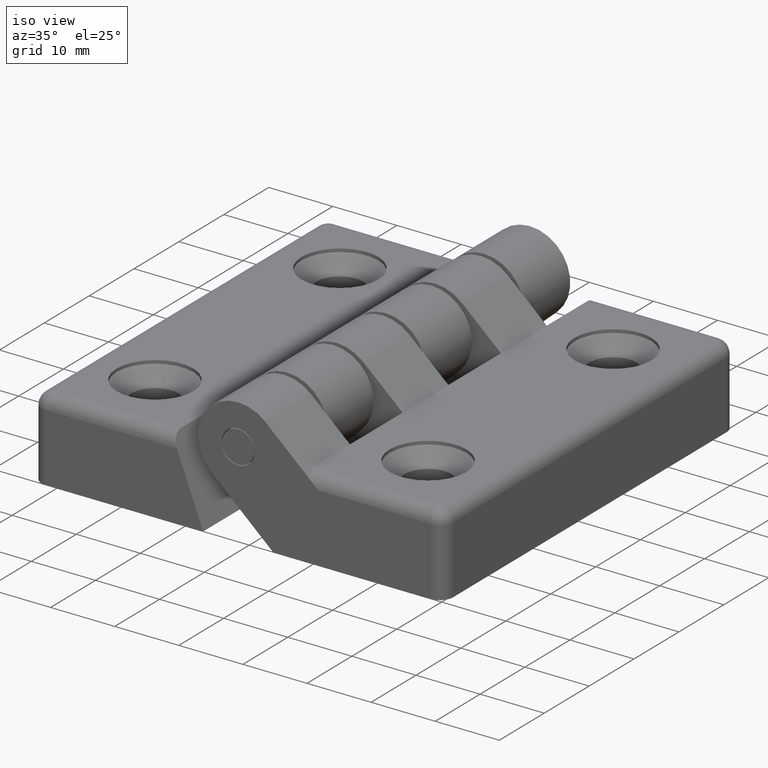
[diagram: clean part render]
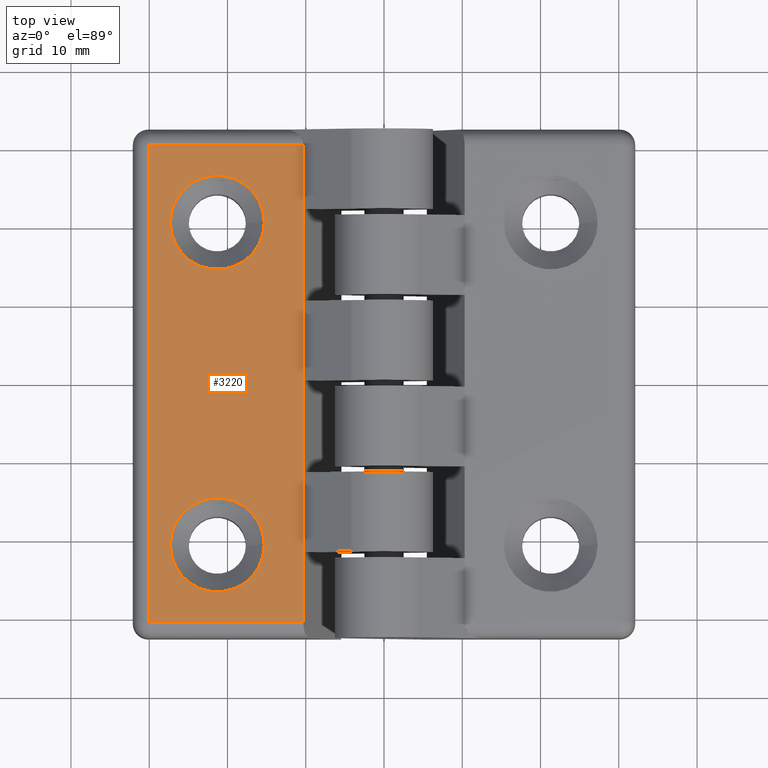
[diagram: tour spotlight — one face highlighted and labeled with its STEP entity id]
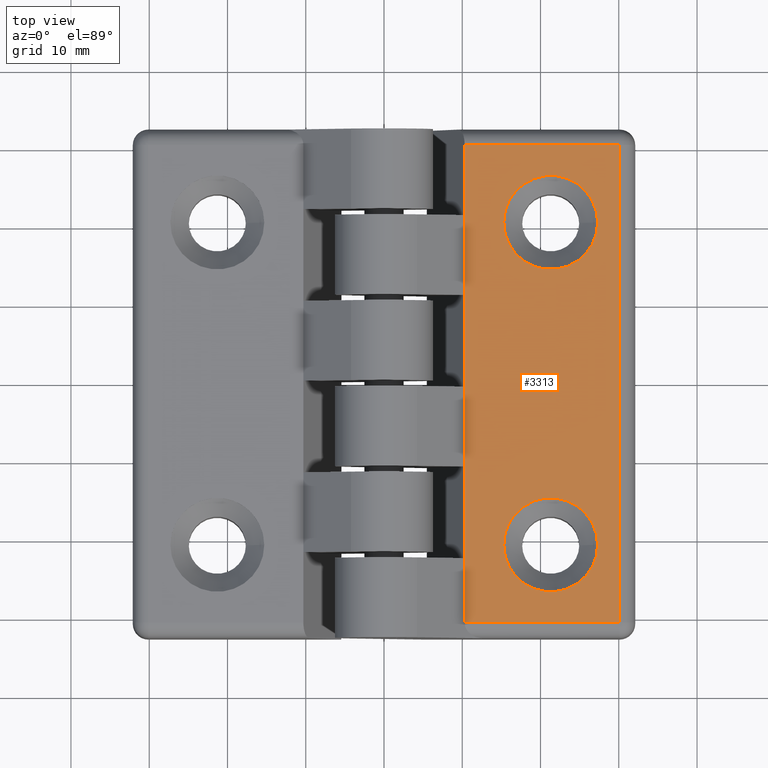
[diagram: tour spotlight — one face highlighted and labeled with its STEP entity id]
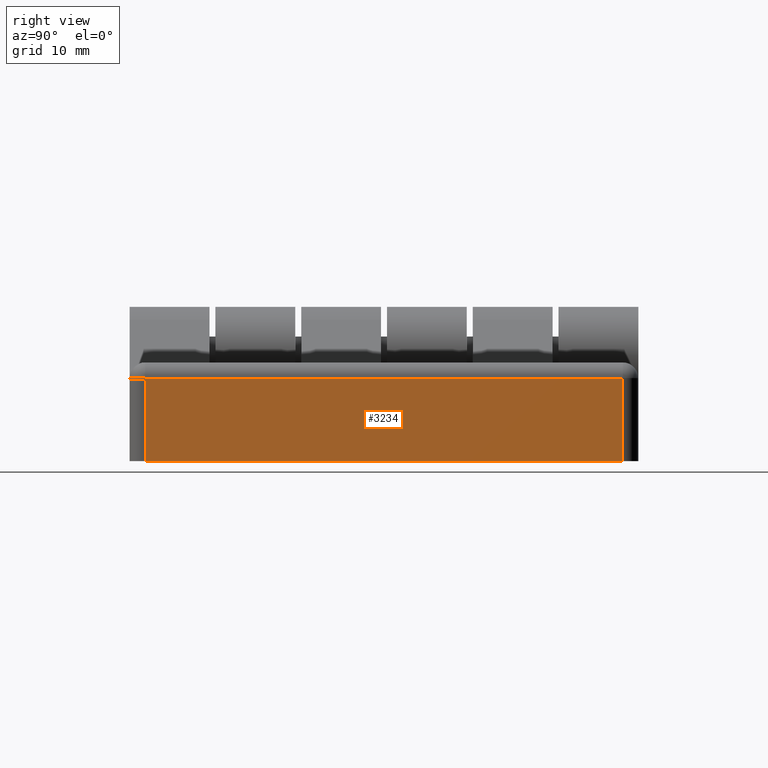
[diagram: tour spotlight — one face highlighted and labeled with its STEP entity id]
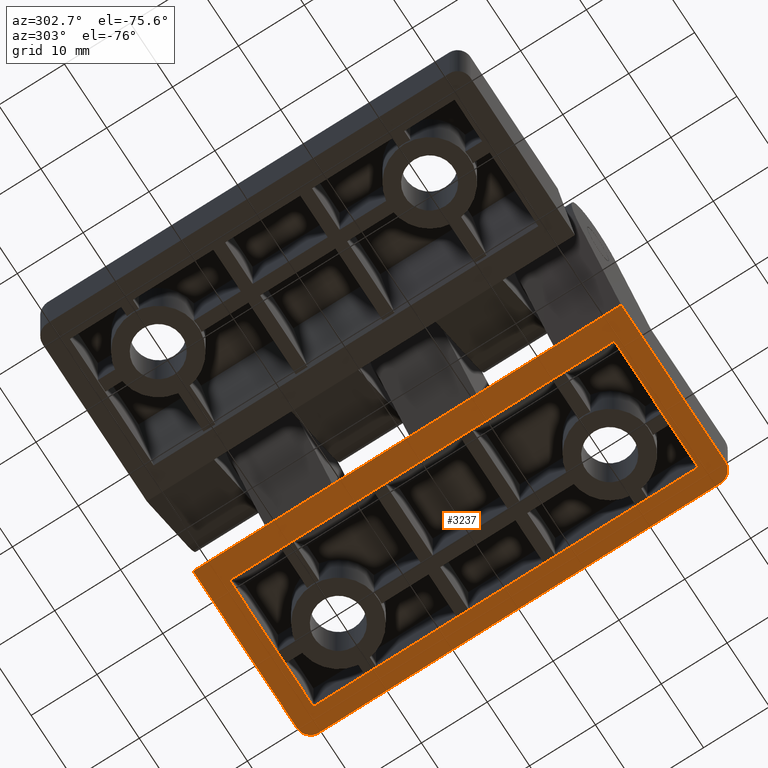
[diagram: tour spotlight — one face highlighted and labeled with its STEP entity id]
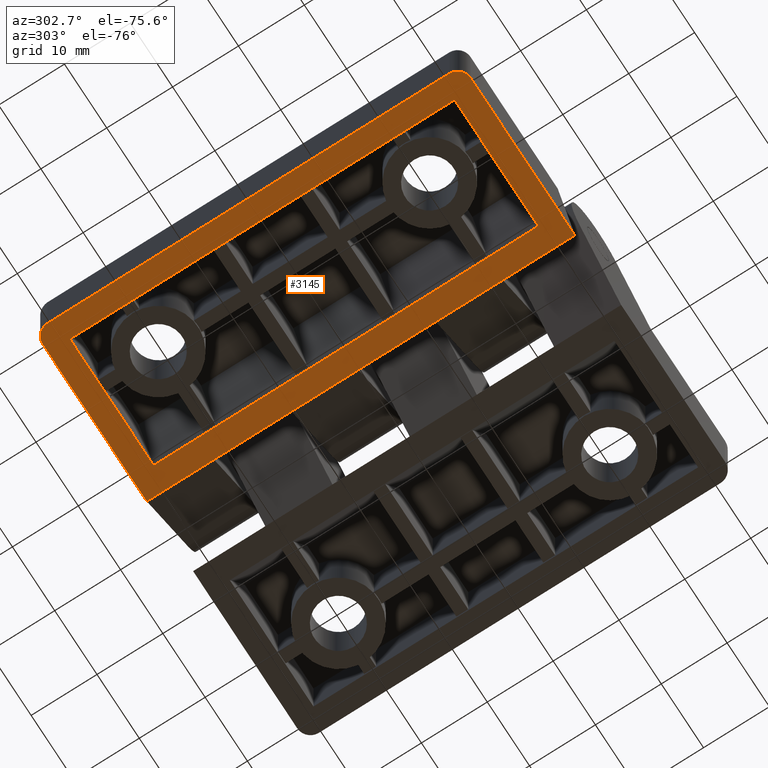
[diagram: tour spotlight — one face highlighted and labeled with its STEP entity id]
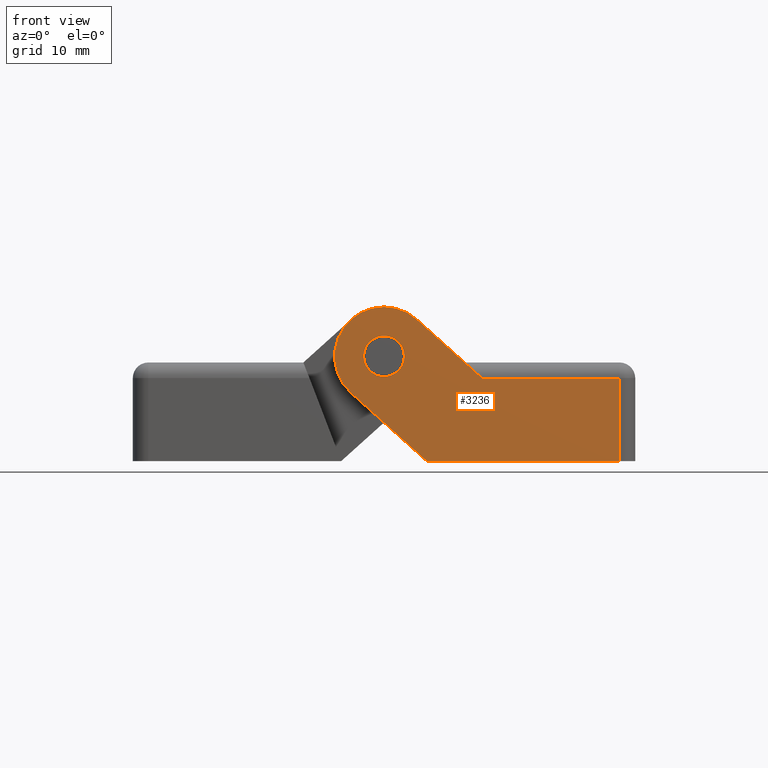
[diagram: tour spotlight — one face highlighted and labeled with its STEP entity id]
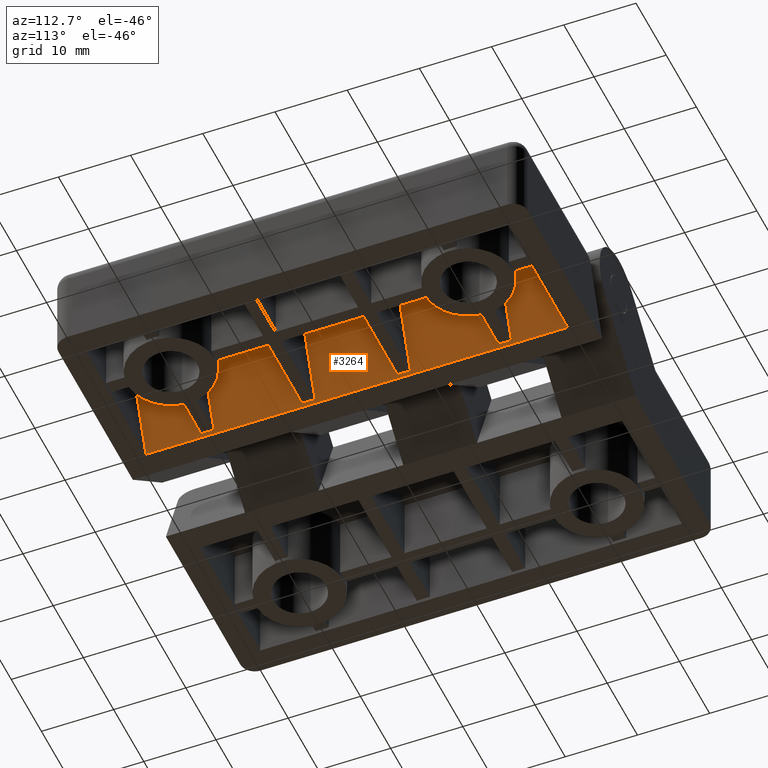
[diagram: tour spotlight — one face highlighted and labeled with its STEP entity id]
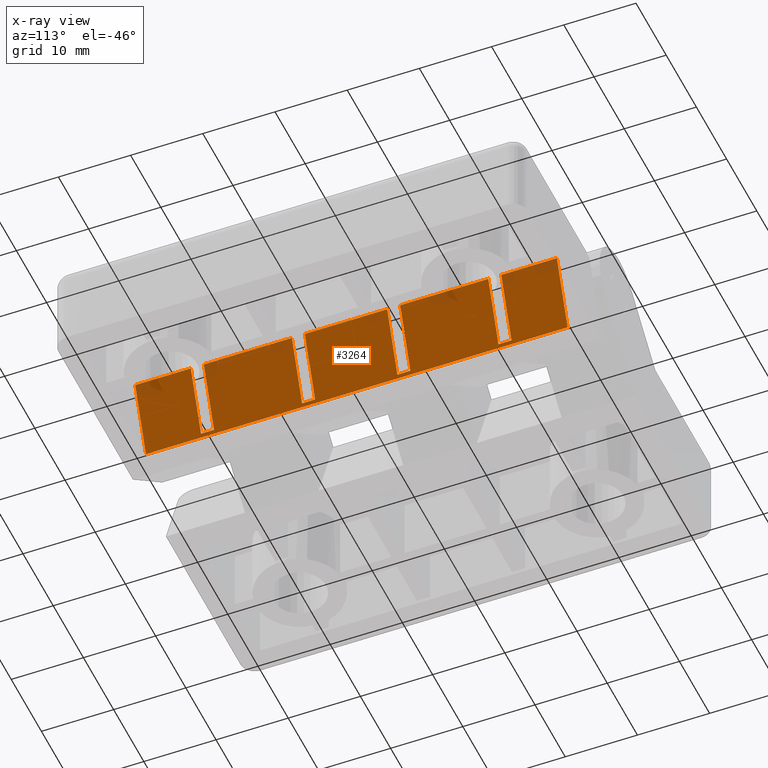
[diagram: x-ray of the same camera — body ghosted, this tour face saturated]
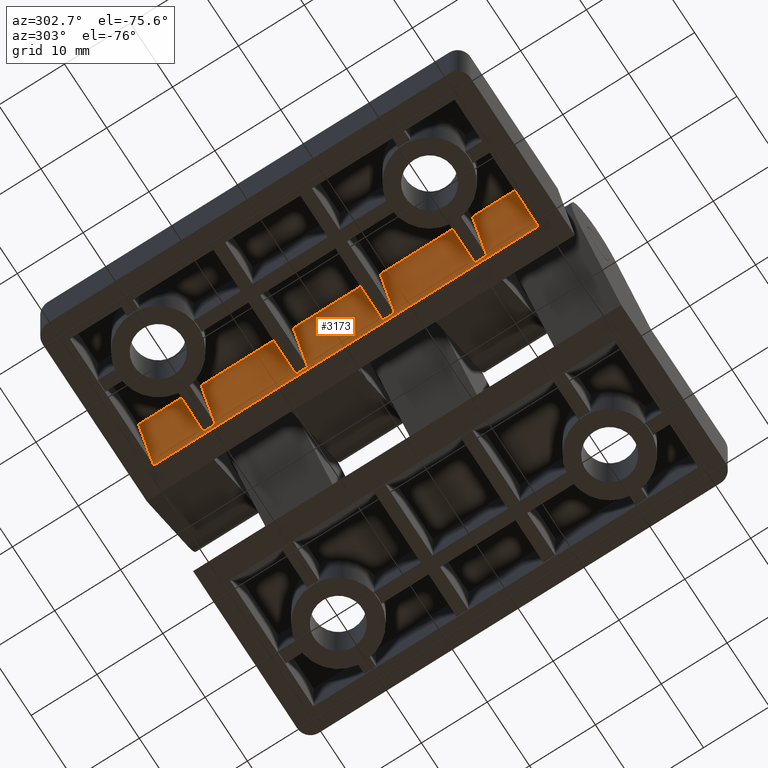
[diagram: tour spotlight — one face highlighted and labeled with its STEP entity id]
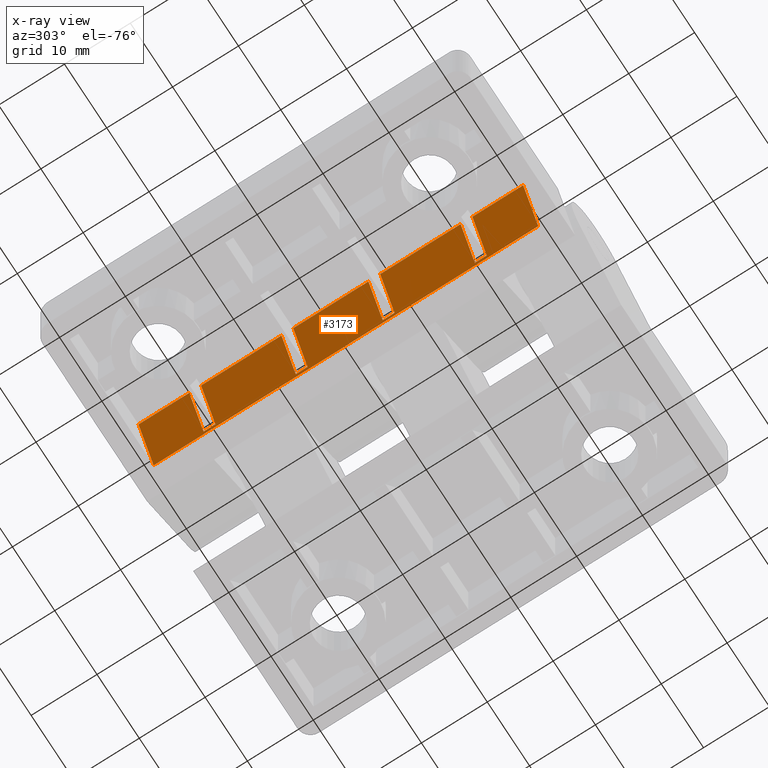
[diagram: x-ray of the same camera — body ghosted, this tour face saturated]
A machine part: a face-by-face anatomy tour. The part has 181 B-rep faces; the first image is the clean iso view, then the 8 largest visible faces are spotlighted one at a time (largest first), each with its STEP entity span.

Face 1 — top view, entity #3220. In plain terms, the highlighted planar face has unit normal (0, -0, 1).
Definition (entity closure, byte-faithful):
#62=FACE_BOUND('',#516,.T.);
#63=FACE_BOUND('',#517,.T.);
#152=PLANE('',#3453);
#314=FACE_OUTER_BOUND('',#515,.T.);
#515=EDGE_LOOP('',(#2623,#2624,#2625,#2626,#2627,#2628,#2629,#2630,#2631));
#516=EDGE_LOOP('',(#2632));
#517=EDGE_LOOP('',(#2633));
#658=CIRCLE('',#3364,6.);
#659=CIRCLE('',#3366,6.);
#730=LINE('',#4537,#1084);
#733=LINE('',#4548,#1087);
#734=LINE('',#4555,#1088);
#881=LINE('',#4935,#1235);
#891=LINE('',#4959,#1245);
#894=LINE('',#4965,#1248);
#901=LINE('',#4983,#1255);
#903=LINE('',#4987,#1257);
#905=LINE('',#4991,#1259);
#1084=VECTOR('',#3611,19.7963077240007);
#1087=VECTOR('',#3622,61.);
#1088=VECTOR('',#3631,19.7963077240007);
#1235=VECTOR('',#3988,11.72);
#1245=VECTOR('',#4014,8.2);
#1248=VECTOR('',#4019,11.72);
#1255=VECTOR('',#4040,10.2);
#1257=VECTOR('',#4044,8.96);
#1259=VECTOR('',#4050,10.2);
#1443=VERTEX_POINT('',#4534);
#1444=VERTEX_POINT('',#4536);
#1446=VERTEX_POINT('',#4542);
#1450=VERTEX_POINT('',#4554);
#1482=VERTEX_POINT('',#4642);
#1483=VERTEX_POINT('',#4645);
#1577=VERTEX_POINT('',#4932);
#1578=VERTEX_POINT('',#4934);
#1585=VERTEX_POINT('',#4961);
#1586=VERTEX_POINT('',#4963);
#1591=VERTEX_POINT('',#4985);
#1745=EDGE_CURVE('',#1443,#1444,#730,.T.);
#1751=EDGE_CURVE('',#1444,#1446,#733,.T.);
#1754=EDGE_CURVE('',#1446,#1450,#734,.T.);
#1794=EDGE_CURVE('',#1482,#1482,#658,.T.);
#1795=EDGE_CURVE('',#1483,#1483,#659,.T.);
#1938=EDGE_CURVE('',#1577,#1578,#881,.T.);
#1951=EDGE_CURVE('',#1450,#1577,#891,.T.);
#1954=EDGE_CURVE('',#1586,#1585,#894,.T.);
#1963=EDGE_CURVE('',#1578,#1586,#901,.T.);
#1965=EDGE_CURVE('',#1591,#1443,#903,.T.);
#1967=EDGE_CURVE('',#1585,#1591,#905,.T.);
#2623=ORIENTED_EDGE('',*,*,#1745,.F.);
#2624=ORIENTED_EDGE('',*,*,#1965,.F.);
#2625=ORIENTED_EDGE('',*,*,#1967,.F.);
#2626=ORIENTED_EDGE('',*,*,#1954,.F.);
#2627=ORIENTED_EDGE('',*,*,#1963,.F.);
#2628=ORIENTED_EDGE('',*,*,#1938,.F.);
#2629=ORIENTED_EDGE('',*,*,#1951,.F.);
#2630=ORIENTED_EDGE('',*,*,#1754,.F.);
#2631=ORIENTED_EDGE('',*,*,#1751,.F.);
#2632=ORIENTED_EDGE('',*,*,#1794,.T.);
#2633=ORIENTED_EDGE('',*,*,#1795,.T.);
#3220=ADVANCED_FACE('',(#314,#62,#63),#152,.T.);
#3364=AXIS2_PLACEMENT_3D('',#4643,#3721,#3722);
#3366=AXIS2_PLACEMENT_3D('',#4646,#3725,#3726);
#3453=AXIS2_PLACEMENT_3D('',#4990,#4048,#4049);
#3611=DIRECTION('',(-1.,1.22464679914735E-16,2.80149588304563E-16));
#3622=DIRECTION('',(1.22464679914735E-16,1.,0.));
#3631=DIRECTION('',(1.,-1.22464679914735E-16,-2.80149588304563E-16));
#3721=DIRECTION('center_axis',(-2.80149588304563E-16,3.43084296599632E-32,
-1.));
#3722=DIRECTION('ref_axis',(-1.,-9.61149244461475E-48,2.80149588304563E-16));
#3725=DIRECTION('center_axis',(-2.80149588304563E-16,3.43084296599632E-32,
-1.));
#3726=DIRECTION('ref_axis',(-1.,-9.61149244461475E-48,2.80149588304563E-16));
#3988=DIRECTION('',(-1.22464679914735E-16,-1.,0.));
#4014=DIRECTION('',(-1.22464679914735E-16,-1.,0.));
#4019=DIRECTION('',(-1.22464679914735E-16,-1.,0.));
#4040=DIRECTION('',(-1.22464679914735E-16,-1.,0.));
#4044=DIRECTION('',(-1.22464679914735E-16,-1.,0.));
#4048=DIRECTION('center_axis',(2.80149588304563E-16,-3.43084296599632E-32,
1.));
#4049=DIRECTION('ref_axis',(-1.,1.22464679914735E-16,3.33066907387547E-16));
#4050=DIRECTION('',(-1.22464679914735E-16,-1.,0.));
#4534=CARTESIAN_POINT('',(-10.3036922759993,-30.5,-0.79999999998711));
#4536=CARTESIAN_POINT('',(-30.1,-30.5,-0.799999999987104));
#4537=CARTESIAN_POINT('',(-11.6018461379999,-30.5,-0.79999999998711));
#4542=CARTESIAN_POINT('',(-30.1,30.5,-0.799999999987104));
#4548=CARTESIAN_POINT('',(-30.1,3.68618686543353E-15,-0.799999999987104));
#4554=CARTESIAN_POINT('',(-10.3036922759993,30.5,-0.79999999998711));
#4555=CARTESIAN_POINT('',(-11.6018461379999,30.5,-0.79999999998711));
#4642=CARTESIAN_POINT('',(-15.3,20.6,-0.799999999987117));
#4643=CARTESIAN_POINT('Origin',(-21.3,20.6,-0.79999999998711));
#4645=CARTESIAN_POINT('',(-15.3,-20.6,-0.799999999987117));
#4646=CARTESIAN_POINT('Origin',(-21.3,-20.6,-0.79999999998711));
#4932=CARTESIAN_POINT('',(-10.3036922759993,22.3,-0.799999999987113));
#4934=CARTESIAN_POINT('',(-10.3036922759993,10.58,-0.799999999987113));
#4935=CARTESIAN_POINT('',(-10.3036922759993,1.26183837652019E-15,-0.79999999998711));
#4959=CARTESIAN_POINT('',(-10.3036922759993,1.26183837652019E-15,-0.79999999998711));
#4961=CARTESIAN_POINT('',(-10.3036922759993,-11.34,-0.799999999987111));
#4963=CARTESIAN_POINT('',(-10.3036922759993,0.38,-0.799999999987112));
#4965=CARTESIAN_POINT('',(-10.3036922759993,1.26183837652019E-15,-0.79999999998711));
#4983=CARTESIAN_POINT('',(-10.3036922759993,1.26183837652019E-15,-0.79999999998711));
#4985=CARTESIAN_POINT('',(-10.3036922759993,-21.54,-0.799999999987111));
#4987=CARTESIAN_POINT('',(-10.3036922759993,1.26183837652019E-15,-0.79999999998711));
#4990=CARTESIAN_POINT('Origin',(-10.3036922759993,1.26183837652019E-15,
-0.79999999998711));
#4991=CARTESIAN_POINT('',(-10.3036922759993,1.26183837652019E-15,-0.79999999998711));

Face 2 — top view, entity #3313. In plain terms, the highlighted planar face has unit normal (-0, 0, 1).
Definition (entity closure, byte-faithful):
#85=FACE_BOUND('',#632,.T.);
#86=FACE_BOUND('',#633,.T.);
#223=PLANE('',#3598);
#407=FACE_OUTER_BOUND('',#631,.T.);
#631=EDGE_LOOP('',(#3081,#3082,#3083,#3084,#3085,#3086,#3087,#3088,#3089));
#632=EDGE_LOOP('',(#3090));
#633=EDGE_LOOP('',(#3091));
#706=CIRCLE('',#3508,6.);
#707=CIRCLE('',#3510,6.);
#907=LINE('',#5010,#1261);
#910=LINE('',#5021,#1264);
#911=LINE('',#5028,#1265);
#1058=LINE('',#5407,#1412);
#1063=LINE('',#5419,#1417);
#1065=LINE('',#5423,#1419);
#1075=LINE('',#5446,#1429);
#1077=LINE('',#5453,#1431);
#1082=LINE('',#5464,#1436);
#1261=VECTOR('',#4076,19.7963077240007);
#1264=VECTOR('',#4087,61.);
#1265=VECTOR('',#4096,19.7963077240007);
#1412=VECTOR('',#4453,8.96);
#1417=VECTOR('',#4464,10.2);
#1419=VECTOR('',#4468,11.72);
#1429=VECTOR('',#4492,10.2);
#1431=VECTOR('',#4502,11.72);
#1436=VECTOR('',#4515,8.2);
#1595=VERTEX_POINT('',#5007);
#1596=VERTEX_POINT('',#5009);
#1598=VERTEX_POINT('',#5015);
#1602=VERTEX_POINT('',#5027);
#1634=VERTEX_POINT('',#5115);
#1635=VERTEX_POINT('',#5118);
#1729=VERTEX_POINT('',#5405);
#1733=VERTEX_POINT('',#5417);
#1734=VERTEX_POINT('',#5421);
#1740=VERTEX_POINT('',#5444);
#1741=VERTEX_POINT('',#5451);
#1972=EDGE_CURVE('',#1595,#1596,#907,.T.);
#1978=EDGE_CURVE('',#1596,#1598,#910,.T.);
#1981=EDGE_CURVE('',#1598,#1602,#911,.T.);
#2021=EDGE_CURVE('',#1634,#1634,#706,.T.);
#2022=EDGE_CURVE('',#1635,#1635,#707,.T.);
#2165=EDGE_CURVE('',#1729,#1595,#1058,.T.);
#2171=EDGE_CURVE('',#1733,#1729,#1063,.T.);
#2173=EDGE_CURVE('',#1734,#1733,#1065,.T.);
#2185=EDGE_CURVE('',#1740,#1734,#1075,.T.);
#2188=EDGE_CURVE('',#1741,#1740,#1077,.T.);
#2194=EDGE_CURVE('',#1602,#1741,#1082,.T.);
#3081=ORIENTED_EDGE('',*,*,#1972,.F.);
#3082=ORIENTED_EDGE('',*,*,#2165,.F.);
#3083=ORIENTED_EDGE('',*,*,#2171,.F.);
#3084=ORIENTED_EDGE('',*,*,#2173,.F.);
#3085=ORIENTED_EDGE('',*,*,#2185,.F.);
#3086=ORIENTED_EDGE('',*,*,#2188,.F.);
#3087=ORIENTED_EDGE('',*,*,#2194,.F.);
#3088=ORIENTED_EDGE('',*,*,#1981,.F.);
#3089=ORIENTED_EDGE('',*,*,#1978,.F.);
#3090=ORIENTED_EDGE('',*,*,#2021,.T.);
#3091=ORIENTED_EDGE('',*,*,#2022,.T.);
#3313=ADVANCED_FACE('',(#407,#85,#86),#223,.T.);
#3508=AXIS2_PLACEMENT_3D('',#5116,#4186,#4187);
#3510=AXIS2_PLACEMENT_3D('',#5119,#4190,#4191);
#3598=AXIS2_PLACEMENT_3D('',#5465,#4516,#4517);
#4076=DIRECTION('',(1.,0.,2.80149588304563E-16));
#4087=DIRECTION('',(0.,-1.,0.));
#4096=DIRECTION('',(-1.,0.,-2.80149588304563E-16));
#4186=DIRECTION('center_axis',(2.80149588304563E-16,0.,-1.));
#4187=DIRECTION('ref_axis',(-1.,0.,-2.80149588304563E-16));
#4190=DIRECTION('center_axis',(2.80149588304563E-16,0.,-1.));
#4191=DIRECTION('ref_axis',(-1.,0.,-2.80149588304563E-16));
#4453=DIRECTION('',(0.,1.,0.));
#4464=DIRECTION('',(0.,1.,0.));
#4468=DIRECTION('',(0.,1.,0.));
#4492=DIRECTION('',(0.,1.,0.));
#4502=DIRECTION('',(0.,1.,0.));
#4515=DIRECTION('',(0.,1.,0.));
#4516=DIRECTION('center_axis',(-2.80149588304563E-16,0.,1.));
#4517=DIRECTION('ref_axis',(1.,0.,3.33066907387547E-16));
#5007=CARTESIAN_POINT('',(10.3036922759993,30.5,-0.79999999998711));
#5009=CARTESIAN_POINT('',(30.1,30.5,-0.799999999987104));
#5010=CARTESIAN_POINT('',(11.6018461379999,30.5,-0.79999999998711));
#5015=CARTESIAN_POINT('',(30.1,-30.5,-0.799999999987104));
#5021=CARTESIAN_POINT('',(30.1,0.,-0.799999999987104));
#5027=CARTESIAN_POINT('',(10.3036922759993,-30.5,-0.79999999998711));
#5028=CARTESIAN_POINT('',(11.6018461379999,-30.5,-0.79999999998711));
#5115=CARTESIAN_POINT('',(27.3,20.6,-0.799999999987105));
#5116=CARTESIAN_POINT('Origin',(21.3,20.6,-0.79999999998711));
#5118=CARTESIAN_POINT('',(27.3,-20.6,-0.799999999987105));
#5119=CARTESIAN_POINT('Origin',(21.3,-20.6,-0.79999999998711));
#5405=CARTESIAN_POINT('',(10.3036922759993,21.54,-0.799999999987111));
#5407=CARTESIAN_POINT('',(10.3036922759993,0.,-0.79999999998711));
#5417=CARTESIAN_POINT('',(10.3036922759993,11.34,-0.799999999987111));
#5419=CARTESIAN_POINT('',(10.3036922759993,0.,-0.79999999998711));
#5421=CARTESIAN_POINT('',(10.3036922759993,-0.379999999999998,-0.799999999987111));
#5423=CARTESIAN_POINT('',(10.3036922759993,0.,-0.79999999998711));
#5444=CARTESIAN_POINT('',(10.3036922759993,-10.58,-0.799999999987111));
#5446=CARTESIAN_POINT('',(10.3036922759993,0.,-0.79999999998711));
#5451=CARTESIAN_POINT('',(10.3036922759993,-22.3,-0.799999999987111));
#5453=CARTESIAN_POINT('',(10.3036922759993,0.,-0.79999999998711));
#5464=CARTESIAN_POINT('',(10.3036922759993,0.,-0.79999999998711));
#5465=CARTESIAN_POINT('Origin',(10.3036922759993,0.,-0.79999999998711));

Face 3 — right view, entity #3234. In plain terms, the highlighted planar face has unit normal (1, -0, 0).
Definition (entity closure, byte-faithful):
#158=PLANE('',#3480);
#328=FACE_OUTER_BOUND('',#532,.T.);
#532=EDGE_LOOP('',(#2676,#2677,#2678,#2679));
#909=LINE('',#5019,#1263);
#916=LINE('',#5042,#1270);
#917=LINE('',#5046,#1271);
#918=LINE('',#5047,#1272);
#1263=VECTOR('',#4084,61.);
#1270=VECTOR('',#4111,10.6);
#1271=VECTOR('',#4116,10.6);
#1272=VECTOR('',#4117,61.);
#1599=VERTEX_POINT('',#5016);
#1600=VERTEX_POINT('',#5018);
#1606=VERTEX_POINT('',#5041);
#1607=VERTEX_POINT('',#5045);
#1976=EDGE_CURVE('',#1599,#1600,#909,.T.);
#1988=EDGE_CURVE('',#1600,#1606,#916,.T.);
#1990=EDGE_CURVE('',#1607,#1599,#917,.T.);
#1991=EDGE_CURVE('',#1607,#1606,#918,.T.);
#2676=ORIENTED_EDGE('',*,*,#1976,.F.);
#2677=ORIENTED_EDGE('',*,*,#1990,.F.);
#2678=ORIENTED_EDGE('',*,*,#1991,.T.);
#2679=ORIENTED_EDGE('',*,*,#1988,.F.);
#3234=ADVANCED_FACE('',(#328),#158,.T.);
#3480=AXIS2_PLACEMENT_3D('',#5044,#4114,#4115);
#4084=DIRECTION('',(0.,1.,0.));
#4111=DIRECTION('',(0.,0.,-1.));
#4114=DIRECTION('center_axis',(1.,0.,0.));
#4115=DIRECTION('ref_axis',(0.,0.,-1.));
#4116=DIRECTION('',(0.,0.,1.));
#4117=DIRECTION('',(0.,1.,0.));
#5016=CARTESIAN_POINT('',(32.1,-30.5,-2.7999999999871));
#5018=CARTESIAN_POINT('',(32.1,30.5,-2.7999999999871));
#5019=CARTESIAN_POINT('',(32.1,0.,-2.7999999999871));
#5041=CARTESIAN_POINT('',(32.1,30.5,-13.3999999999871));
#5042=CARTESIAN_POINT('',(32.1,30.5,-2.17499999999057));
#5044=CARTESIAN_POINT('Origin',(32.1,0.,-0.799999999987104));
#5045=CARTESIAN_POINT('',(32.1,-30.5,-13.3999999999871));
#5046=CARTESIAN_POINT('',(32.1,-30.5,-2.17499999999057));
#5047=CARTESIAN_POINT('',(32.1,0.,-13.3999999999871));

Face 4 — auxiliary view, entity #3237. In plain terms, the highlighted planar face has unit normal (0, 0, -1).
Definition (entity closure, byte-faithful):
#66=FACE_BOUND('',#537,.T.);
#160=PLANE('',#3486);
#331=FACE_OUTER_BOUND('',#536,.T.);
#536=EDGE_LOOP('',(#2691,#2692,#2693,#2694,#2695,#2696,#2697,#2698,#2699,
#2700,#2701));
#537=EDGE_LOOP('',(#2702,#2703,#2704,#2705));
#690=CIRCLE('',#3479,2.);
#691=CIRCLE('',#3482,2.);
#914=LINE('',#5038,#1268);
#918=LINE('',#5047,#1272);
#922=LINE('',#5059,#1276);
#923=LINE('',#5064,#1277);
#924=LINE('',#5066,#1278);
#925=LINE('',#5068,#1279);
#926=LINE('',#5070,#1280);
#927=LINE('',#5072,#1281);
#928=LINE('',#5073,#1282);
#929=LINE('',#5076,#1283);
#930=LINE('',#5078,#1284);
#931=LINE('',#5080,#1285);
#932=LINE('',#5081,#1286);
#1268=VECTOR('',#4107,24.6329945654451);
#1272=VECTOR('',#4117,61.);
#1276=VECTOR('',#4129,24.6329945654451);
#1277=VECTOR('',#4134,10.2);
#1278=VECTOR('',#4135,11.72);
#1279=VECTOR('',#4136,10.2);
#1280=VECTOR('',#4137,11.72);
#1281=VECTOR('',#4138,10.2);
#1282=VECTOR('',#4139,10.96);
#1283=VECTOR('',#4140,19.7982160864431);
#1284=VECTOR('',#4141,58.4);
#1285=VECTOR('',#4142,19.7982160864431);
#1286=VECTOR('',#4143,58.4);
#1604=VERTEX_POINT('',#5035);
#1605=VERTEX_POINT('',#5037);
#1606=VERTEX_POINT('',#5041);
#1607=VERTEX_POINT('',#5045);
#1608=VERTEX_POINT('',#5049);
#1611=VERTEX_POINT('',#5057);
#1613=VERTEX_POINT('',#5063);
#1614=VERTEX_POINT('',#5065);
#1615=VERTEX_POINT('',#5067);
#1616=VERTEX_POINT('',#5069);
#1617=VERTEX_POINT('',#5071);
#1618=VERTEX_POINT('',#5074);
#1619=VERTEX_POINT('',#5075);
#1620=VERTEX_POINT('',#5077);
#1621=VERTEX_POINT('',#5079);
#1986=EDGE_CURVE('',#1604,#1605,#914,.T.);
#1989=EDGE_CURVE('',#1606,#1604,#690,.T.);
#1991=EDGE_CURVE('',#1607,#1606,#918,.T.);
#1993=EDGE_CURVE('',#1608,#1607,#691,.T.);
#1997=EDGE_CURVE('',#1611,#1608,#922,.T.);
#1999=EDGE_CURVE('',#1613,#1611,#923,.T.);
#2000=EDGE_CURVE('',#1614,#1613,#924,.T.);
#2001=EDGE_CURVE('',#1615,#1614,#925,.T.);
#2002=EDGE_CURVE('',#1616,#1615,#926,.T.);
#2003=EDGE_CURVE('',#1617,#1616,#927,.T.);
#2004=EDGE_CURVE('',#1605,#1617,#928,.T.);
#2005=EDGE_CURVE('',#1618,#1619,#929,.T.);
#2006=EDGE_CURVE('',#1619,#1620,#930,.T.);
#2007=EDGE_CURVE('',#1620,#1621,#931,.T.);
#2008=EDGE_CURVE('',#1621,#1618,#932,.T.);
#2691=ORIENTED_EDGE('',*,*,#1989,.F.);
#2692=ORIENTED_EDGE('',*,*,#1991,.F.);
#2693=ORIENTED_EDGE('',*,*,#1993,.F.);
#2694=ORIENTED_EDGE('',*,*,#1997,.F.);
#2695=ORIENTED_EDGE('',*,*,#1999,.F.);
#2696=ORIENTED_EDGE('',*,*,#2000,.F.);
#2697=ORIENTED_EDGE('',*,*,#2001,.F.);
#2698=ORIENTED_EDGE('',*,*,#2002,.F.);
#2699=ORIENTED_EDGE('',*,*,#2003,.F.);
#2700=ORIENTED_EDGE('',*,*,#2004,.F.);
#2701=ORIENTED_EDGE('',*,*,#1986,.F.);
#2702=ORIENTED_EDGE('',*,*,#2005,.T.);
#2703=ORIENTED_EDGE('',*,*,#2006,.T.);
#2704=ORIENTED_EDGE('',*,*,#2007,.T.);
#2705=ORIENTED_EDGE('',*,*,#2008,.T.);
#3237=ADVANCED_FACE('',(#331,#66),#160,.T.);
#3479=AXIS2_PLACEMENT_3D('',#5043,#4112,#4113);
#3482=AXIS2_PLACEMENT_3D('',#5051,#4121,#4122);
#3486=AXIS2_PLACEMENT_3D('',#5062,#4132,#4133);
#4107=DIRECTION('',(-1.,0.,0.));
#4112=DIRECTION('center_axis',(0.,0.,1.));
#4113=DIRECTION('ref_axis',(0.707106781186548,0.707106781186548,0.));
#4117=DIRECTION('',(0.,1.,0.));
#4121=DIRECTION('center_axis',(0.,0.,1.));
#4122=DIRECTION('ref_axis',(0.707106781186548,-0.707106781186548,0.));
#4129=DIRECTION('',(1.,0.,0.));
#4132=DIRECTION('center_axis',(0.,0.,-1.));
#4133=DIRECTION('ref_axis',(-1.,0.,0.));
#4134=DIRECTION('',(0.,-1.,0.));
#4135=DIRECTION('',(0.,-1.,0.));
#4136=DIRECTION('',(0.,-1.,0.));
#4137=DIRECTION('',(0.,-1.,0.));
#4138=DIRECTION('',(0.,-1.,0.));
#4139=DIRECTION('',(0.,-1.,0.));
#4140=DIRECTION('',(-1.,0.,0.));
#4141=DIRECTION('',(0.,-1.,0.));
#4142=DIRECTION('',(1.,0.,0.));
#4143=DIRECTION('',(0.,1.,0.));
#5035=CARTESIAN_POINT('',(30.1,32.5,-13.3999999999871));
#5037=CARTESIAN_POINT('',(5.46700543455491,32.5,-13.3999999999871));
#5038=CARTESIAN_POINT('',(5.46700543455491,32.5,-13.3999999999871));
#5041=CARTESIAN_POINT('',(32.1,30.5,-13.3999999999871));
#5043=CARTESIAN_POINT('Origin',(30.1,30.5,-13.3999999999871));
#5045=CARTESIAN_POINT('',(32.1,-30.5,-13.3999999999871));
#5047=CARTESIAN_POINT('',(32.1,0.,-13.3999999999871));
#5049=CARTESIAN_POINT('',(30.1,-32.5,-13.3999999999871));
#5051=CARTESIAN_POINT('Origin',(30.1,-30.5,-13.3999999999871));
#5057=CARTESIAN_POINT('',(5.46700543455491,-32.5,-13.3999999999871));
#5059=CARTESIAN_POINT('',(5.46700543455491,-32.5,-13.3999999999871));
#5062=CARTESIAN_POINT('Origin',(32.1,0.,-13.3999999999871));
#5063=CARTESIAN_POINT('',(5.46700543455491,-22.3,-13.3999999999871));
#5064=CARTESIAN_POINT('',(5.46700543455491,0.,-13.3999999999871));
#5065=CARTESIAN_POINT('',(5.46700543455491,-10.58,-13.3999999999871));
#5066=CARTESIAN_POINT('',(5.46700543455491,0.,-13.3999999999871));
#5067=CARTESIAN_POINT('',(5.46700543455491,-0.379999999999998,-13.3999999999871));
#5068=CARTESIAN_POINT('',(5.46700543455491,0.,-13.3999999999871));
#5069=CARTESIAN_POINT('',(5.46700543455491,11.34,-13.3999999999871));
#5070=CARTESIAN_POINT('',(5.46700543455491,0.,-13.3999999999871));
#5071=CARTESIAN_POINT('',(5.46700543455491,21.54,-13.3999999999871));
#5072=CARTESIAN_POINT('',(5.46700543455491,0.,-13.3999999999871));
#5073=CARTESIAN_POINT('',(5.46700543455491,0.,-13.3999999999871));
#5074=CARTESIAN_POINT('',(28.8,29.2,-13.3999999999871));
#5075=CARTESIAN_POINT('',(9.00178391355695,29.2,-13.3999999999871));
#5076=CARTESIAN_POINT('',(24.9628033352915,29.2,-13.3999999999871));
#5077=CARTESIAN_POINT('',(9.00178391355695,-29.2,-13.3999999999871));
#5078=CARTESIAN_POINT('',(9.00178391355695,0.,-13.3999999999871));
#5079=CARTESIAN_POINT('',(28.8,-29.2,-13.3999999999871));
#5080=CARTESIAN_POINT('',(24.9628033352915,-29.2,-13.3999999999871));
#5081=CARTESIAN_POINT('',(28.8,0.,-13.3999999999871));

Face 5 — auxiliary view, entity #3145. In plain terms, the highlighted planar face has unit normal (0, 0, -1).
Definition (entity closure, byte-faithful):
#43=FACE_BOUND('',#422,.T.);
#90=PLANE('',#3342);
#239=FACE_OUTER_BOUND('',#421,.T.);
#421=EDGE_LOOP('',(#2237,#2238,#2239,#2240,#2241,#2242,#2243,#2244,#2245,
#2246,#2247));
#422=EDGE_LOOP('',(#2248,#2249,#2250,#2251));
#642=CIRCLE('',#3335,2.);
#643=CIRCLE('',#3338,2.);
#737=LINE('',#4565,#1091);
#741=LINE('',#4574,#1095);
#745=LINE('',#4586,#1099);
#746=LINE('',#4591,#1100);
#747=LINE('',#4593,#1101);
#748=LINE('',#4595,#1102);
#749=LINE('',#4597,#1103);
#750=LINE('',#4599,#1104);
#751=LINE('',#4600,#1105);
#752=LINE('',#4603,#1106);
#753=LINE('',#4605,#1107);
#754=LINE('',#4607,#1108);
#755=LINE('',#4608,#1109);
#1091=VECTOR('',#3642,24.6329945654451);
#1095=VECTOR('',#3652,61.);
#1099=VECTOR('',#3664,24.6329945654451);
#1100=VECTOR('',#3669,10.2);
#1101=VECTOR('',#3670,11.72);
#1102=VECTOR('',#3671,10.2);
#1103=VECTOR('',#3672,11.72);
#1104=VECTOR('',#3673,10.2);
#1105=VECTOR('',#3674,10.96);
#1106=VECTOR('',#3675,19.7982160864431);
#1107=VECTOR('',#3676,58.4);
#1108=VECTOR('',#3677,19.7982160864431);
#1109=VECTOR('',#3678,58.4);
#1452=VERTEX_POINT('',#4562);
#1453=VERTEX_POINT('',#4564);
#1454=VERTEX_POINT('',#4568);
#1455=VERTEX_POINT('',#4572);
#1456=VERTEX_POINT('',#4576);
#1459=VERTEX_POINT('',#4584);
#1461=VERTEX_POINT('',#4590);
#1462=VERTEX_POINT('',#4592);
#1463=VERTEX_POINT('',#4594);
#1464=VERTEX_POINT('',#4596);
#1465=VERTEX_POINT('',#4598);
#1466=VERTEX_POINT('',#4601);
#1467=VERTEX_POINT('',#4602);
#1468=VERTEX_POINT('',#4604);
#1469=VERTEX_POINT('',#4606);
#1759=EDGE_CURVE('',#1452,#1453,#737,.T.);
#1762=EDGE_CURVE('',#1454,#1452,#642,.T.);
#1764=EDGE_CURVE('',#1455,#1454,#741,.T.);
#1766=EDGE_CURVE('',#1456,#1455,#643,.T.);
#1770=EDGE_CURVE('',#1459,#1456,#745,.T.);
#1772=EDGE_CURVE('',#1461,#1459,#746,.T.);
#1773=EDGE_CURVE('',#1462,#1461,#747,.T.);
#1774=EDGE_CURVE('',#1463,#1462,#748,.T.);
#1775=EDGE_CURVE('',#1464,#1463,#749,.T.);
#1776=EDGE_CURVE('',#1465,#1464,#750,.T.);
#1777=EDGE_CURVE('',#1453,#1465,#751,.T.);
#1778=EDGE_CURVE('',#1466,#1467,#752,.T.);
#1779=EDGE_CURVE('',#1467,#1468,#753,.T.);
#1780=EDGE_CURVE('',#1468,#1469,#754,.T.);
#1781=EDGE_CURVE('',#1469,#1466,#755,.T.);
#2237=ORIENTED_EDGE('',*,*,#1762,.F.);
#2238=ORIENTED_EDGE('',*,*,#1764,.F.);
#2239=ORIENTED_EDGE('',*,*,#1766,.F.);
#2240=ORIENTED_EDGE('',*,*,#1770,.F.);
#2241=ORIENTED_EDGE('',*,*,#1772,.F.);
#2242=ORIENTED_EDGE('',*,*,#1773,.F.);
#2243=ORIENTED_EDGE('',*,*,#1774,.F.);
#2244=ORIENTED_EDGE('',*,*,#1775,.F.);
#2245=ORIENTED_EDGE('',*,*,#1776,.F.);
#2246=ORIENTED_EDGE('',*,*,#1777,.F.);
#2247=ORIENTED_EDGE('',*,*,#1759,.F.);
#2248=ORIENTED_EDGE('',*,*,#1778,.T.);
#2249=ORIENTED_EDGE('',*,*,#1779,.T.);
#2250=ORIENTED_EDGE('',*,*,#1780,.T.);
#2251=ORIENTED_EDGE('',*,*,#1781,.T.);
#3145=ADVANCED_FACE('',(#239,#43),#90,.T.);
#3335=AXIS2_PLACEMENT_3D('',#4570,#3647,#3648);
#3338=AXIS2_PLACEMENT_3D('',#4578,#3656,#3657);
#3342=AXIS2_PLACEMENT_3D('',#4589,#3667,#3668);
#3642=DIRECTION('',(1.,-1.22464679914735E-16,0.));
#3647=DIRECTION('center_axis',(0.,0.,1.));
#3648=DIRECTION('ref_axis',(-0.707106781186548,-0.707106781186548,0.));
#3652=DIRECTION('',(-1.22464679914735E-16,-1.,0.));
#3656=DIRECTION('center_axis',(0.,0.,1.));
#3657=DIRECTION('ref_axis',(-0.707106781186548,0.707106781186548,0.));
#3664=DIRECTION('',(-1.,1.22464679914735E-16,0.));
#3667=DIRECTION('center_axis',(0.,0.,-1.));
#3668=DIRECTION('ref_axis',(1.,-1.22464679914735E-16,0.));
#3669=DIRECTION('',(1.22464679914735E-16,1.,0.));
#3670=DIRECTION('',(1.22464679914735E-16,1.,0.));
#3671=DIRECTION('',(1.22464679914735E-16,1.,0.));
#3672=DIRECTION('',(1.22464679914735E-16,1.,0.));
#3673=DIRECTION('',(1.22464679914735E-16,1.,0.));
#3674=DIRECTION('',(1.22464679914735E-16,1.,0.));
#3675=DIRECTION('',(-1.,0.,0.));
#3676=DIRECTION('',(0.,-1.,0.));
#3677=DIRECTION('',(1.,0.,0.));
#3678=DIRECTION('',(0.,1.,0.));
#4562=CARTESIAN_POINT('',(-30.1,-32.5,-13.3999999999871));
#4564=CARTESIAN_POINT('',(-5.46700543455492,-32.5,-13.3999999999871));
#4565=CARTESIAN_POINT('',(-5.46700543455492,-32.5,-13.3999999999871));
#4568=CARTESIAN_POINT('',(-32.1,-30.5,-13.3999999999871));
#4570=CARTESIAN_POINT('Origin',(-30.1,-30.5,-13.3999999999871));
#4572=CARTESIAN_POINT('',(-32.1,30.5,-13.3999999999871));
#4574=CARTESIAN_POINT('',(-32.1,3.931116225263E-15,-13.3999999999871));
#4576=CARTESIAN_POINT('',(-30.1,32.5,-13.3999999999871));
#4578=CARTESIAN_POINT('Origin',(-30.1,30.5,-13.3999999999871));
#4584=CARTESIAN_POINT('',(-5.46700543455491,32.5,-13.3999999999871));
#4586=CARTESIAN_POINT('',(-5.46700543455491,32.5,-13.3999999999871));
#4589=CARTESIAN_POINT('Origin',(-32.1,3.931116225263E-15,-13.3999999999871));
#4590=CARTESIAN_POINT('',(-5.46700543455492,22.3,-13.3999999999871));
#4591=CARTESIAN_POINT('',(-5.46700543455491,6.69515070634886E-16,-13.3999999999871));
#4592=CARTESIAN_POINT('',(-5.46700543455492,10.58,-13.3999999999871));
#4593=CARTESIAN_POINT('',(-5.46700543455491,6.69515070634886E-16,-13.3999999999871));
#4594=CARTESIAN_POINT('',(-5.46700543455491,0.38,-13.3999999999871));
#4595=CARTESIAN_POINT('',(-5.46700543455491,6.69515070634886E-16,-13.3999999999871));
#4596=CARTESIAN_POINT('',(-5.46700543455491,-11.34,-13.3999999999871));
#4597=CARTESIAN_POINT('',(-5.46700543455491,6.69515070634886E-16,-13.3999999999871));
#4598=CARTESIAN_POINT('',(-5.46700543455491,-21.54,-13.3999999999871));
#4599=CARTESIAN_POINT('',(-5.46700543455491,6.69515070634886E-16,-13.3999999999871));
#4600=CARTESIAN_POINT('',(-5.46700543455491,6.69515070634886E-16,-13.3999999999871));
#4601=CARTESIAN_POINT('',(-9.00178391355695,29.2,-13.3999999999871));
#4602=CARTESIAN_POINT('',(-28.8,29.2,-13.3999999999871));
#4603=CARTESIAN_POINT('',(-24.9628033352915,29.2,-13.3999999999871));
#4604=CARTESIAN_POINT('',(-28.8,-29.2,-13.3999999999871));
#4605=CARTESIAN_POINT('',(-28.8,1.9655581126315E-15,-13.3999999999871));
#4606=CARTESIAN_POINT('',(-9.00178391355695,-29.2,-13.3999999999871));
#4607=CARTESIAN_POINT('',(-24.9628033352915,-29.2,-13.3999999999871));
#4608=CARTESIAN_POINT('',(-9.00178391355695,1.9655581126315E-15,-13.3999999999871));

Face 6 — front view, entity #3236. In plain terms, the highlighted planar face has unit normal (0, 1, 0).
Definition (entity closure, byte-faithful):
#65=FACE_BOUND('',#535,.T.);
#159=PLANE('',#3483);
#330=FACE_OUTER_BOUND('',#534,.T.);
#534=EDGE_LOOP('',(#2684,#2685,#2686,#2687,#2688,#2689));
#535=EDGE_LOOP('',(#2690));
#692=CIRCLE('',#3484,6.29999999999903);
#693=CIRCLE('',#3485,2.6);
#912=LINE('',#5031,#1266);
#919=LINE('',#5050,#1273);
#920=LINE('',#5054,#1274);
#921=LINE('',#5058,#1275);
#922=LINE('',#5059,#1276);
#1266=VECTOR('',#4099,17.5750826943423);
#1273=VECTOR('',#4120,10.6);
#1274=VECTOR('',#4125,11.1813931826432);
#1275=VECTOR('',#4128,13.0291214007084);
#1276=VECTOR('',#4129,24.6329945654451);
#1601=VERTEX_POINT('',#5025);
#1603=VERTEX_POINT('',#5029);
#1608=VERTEX_POINT('',#5049);
#1609=VERTEX_POINT('',#5053);
#1610=VERTEX_POINT('',#5055);
#1611=VERTEX_POINT('',#5057);
#1612=VERTEX_POINT('',#5060);
#1983=EDGE_CURVE('',#1603,#1601,#912,.T.);
#1992=EDGE_CURVE('',#1601,#1608,#919,.T.);
#1994=EDGE_CURVE('',#1603,#1609,#920,.T.);
#1995=EDGE_CURVE('',#1609,#1610,#692,.T.);
#1996=EDGE_CURVE('',#1610,#1611,#921,.T.);
#1997=EDGE_CURVE('',#1611,#1608,#922,.T.);
#1998=EDGE_CURVE('',#1612,#1612,#693,.T.);
#2684=ORIENTED_EDGE('',*,*,#1983,.F.);
#2685=ORIENTED_EDGE('',*,*,#1994,.T.);
#2686=ORIENTED_EDGE('',*,*,#1995,.T.);
#2687=ORIENTED_EDGE('',*,*,#1996,.T.);
#2688=ORIENTED_EDGE('',*,*,#1997,.T.);
#2689=ORIENTED_EDGE('',*,*,#1992,.F.);
#2690=ORIENTED_EDGE('',*,*,#1998,.T.);
#3236=ADVANCED_FACE('',(#330,#65),#159,.F.);
#3483=AXIS2_PLACEMENT_3D('',#5052,#4123,#4124);
#3484=AXIS2_PLACEMENT_3D('',#5056,#4126,#4127);
#3485=AXIS2_PLACEMENT_3D('',#5061,#4130,#4131);
#4099=DIRECTION('',(1.,0.,2.80149588304563E-16));
#4120=DIRECTION('',(0.,0.,-1.));
#4123=DIRECTION('center_axis',(0.,1.,0.));
#4124=DIRECTION('ref_axis',(1.,0.,0.));
#4125=DIRECTION('',(-0.743144825477395,0.,0.669130606358858));
#4126=DIRECTION('center_axis',(0.,-1.,0.));
#4127=DIRECTION('ref_axis',(-0.669129954745865,0.,-0.743145412191852));
#4128=DIRECTION('',(0.743144825477395,0.,-0.669130606358858));
#4129=DIRECTION('',(1.,0.,0.));
#4130=DIRECTION('center_axis',(0.,1.,0.));
#4131=DIRECTION('ref_axis',(1.,0.,0.));
#5025=CARTESIAN_POINT('',(30.1,-32.5,-2.7999999999871));
#5029=CARTESIAN_POINT('',(12.5249173056577,-32.5,-2.79999999998711));
#5031=CARTESIAN_POINT('',(11.6018461379999,-32.5,-2.79999999998711));
#5049=CARTESIAN_POINT('',(30.1,-32.5,-13.3999999999871));
#5050=CARTESIAN_POINT('',(30.1,-32.5,-2.17499999999057));
#5052=CARTESIAN_POINT('Origin',(12.9000000000005,-32.5,-3.54999999999404));
#5053=CARTESIAN_POINT('',(4.21552282034612,-32.5,4.68181240024938));
#5054=CARTESIAN_POINT('',(4.21552282006227,-32.5,4.6818124005092));
#5055=CARTESIAN_POINT('',(-4.2155187148983,-32.5,-4.68181609680794));
#5056=CARTESIAN_POINT('Origin',(0.,-32.5,0.));
#5057=CARTESIAN_POINT('',(5.46700543455491,-32.5,-13.3999999999871));
#5058=CARTESIAN_POINT('',(5.46700543455491,-32.5,-13.3999999999871));
#5059=CARTESIAN_POINT('',(5.46700543455491,-32.5,-13.3999999999871));
#5060=CARTESIAN_POINT('',(-2.6,-32.5,-3.18408167778312E-16));
#5061=CARTESIAN_POINT('Origin',(0.,-32.5,0.));

Face 7 — auxiliary view, entity #3264. An x-ray twin of the same camera follows (body ghosted, this face saturated) — the face is partly hidden behind the body. In plain terms, the highlighted planar face has unit normal (-0.9336, 0, 0.3584).
Definition (entity closure, byte-faithful):
#178=PLANE('',#3530);
#358=FACE_OUTER_BOUND('',#574,.T.);
#574=EDGE_LOOP('',(#2809,#2810,#2811,#2812,#2813,#2814,#2815,#2816,#2817,
#2818,#2819,#2820,#2821,#2822,#2823,#2824,#2825,#2826,#2827,#2828));
#930=LINE('',#5078,#1284);
#939=LINE('',#5136,#1293);
#943=LINE('',#5145,#1297);
#976=LINE('',#5212,#1330);
#978=LINE('',#5219,#1332);
#981=LINE('',#5225,#1335);
#994=LINE('',#5252,#1348);
#995=LINE('',#5253,#1349);
#996=LINE('',#5255,#1350);
#997=LINE('',#5257,#1351);
#998=LINE('',#5259,#1352);
#999=LINE('',#5261,#1353);
#1000=LINE('',#5263,#1354);
#1001=LINE('',#5264,#1355);
#1002=LINE('',#5266,#1356);
#1003=LINE('',#5268,#1357);
#1004=LINE('',#5270,#1358);
#1005=LINE('',#5272,#1359);
#1006=LINE('',#5273,#1360);
#1007=LINE('',#5274,#1361);
#1284=VECTOR('',#4141,58.4);
#1293=VECTOR('',#4202,9.4260759440054);
#1297=VECTOR('',#4208,9.4260759440054);
#1330=VECTOR('',#4257,12.2);
#1332=VECTOR('',#4263,9.4260759440054);
#1335=VECTOR('',#4268,9.4260759440054);
#1348=VECTOR('',#4293,11.4);
#1349=VECTOR('',#4294,1.8);
#1350=VECTOR('',#4295,12.2);
#1351=VECTOR('',#4296,9.4260759440054);
#1352=VECTOR('',#4297,1.8);
#1353=VECTOR('',#4298,9.4260759440054);
#1354=VECTOR('',#4299,7.7);
#1355=VECTOR('',#4300,9.96164844082389);
#1356=VECTOR('',#4301,9.96164844082389);
#1357=VECTOR('',#4302,7.7);
#1358=VECTOR('',#4303,9.4260759440054);
#1359=VECTOR('',#4304,1.8);
#1360=VECTOR('',#4305,9.4260759440054);
#1361=VECTOR('',#4306,1.8);
#1619=VERTEX_POINT('',#5075);
#1620=VERTEX_POINT('',#5077);
#1642=VERTEX_POINT('',#5133);
#1643=VERTEX_POINT('',#5135);
#1646=VERTEX_POINT('',#5142);
#1647=VERTEX_POINT('',#5144);
#1673=VERTEX_POINT('',#5211);
#1675=VERTEX_POINT('',#5217);
#1676=VERTEX_POINT('',#5218);
#1677=VERTEX_POINT('',#5223);
#1678=VERTEX_POINT('',#5224);
#1687=VERTEX_POINT('',#5254);
#1688=VERTEX_POINT('',#5256);
#1689=VERTEX_POINT('',#5258);
#1690=VERTEX_POINT('',#5260);
#1691=VERTEX_POINT('',#5262);
#1692=VERTEX_POINT('',#5265);
#1693=VERTEX_POINT('',#5267);
#1694=VERTEX_POINT('',#5269);
#1695=VERTEX_POINT('',#5271);
#2006=EDGE_CURVE('',#1619,#1620,#930,.T.);
#2029=EDGE_CURVE('',#1643,#1642,#939,.T.);
#2033=EDGE_CURVE('',#1647,#1646,#943,.T.);
#2067=EDGE_CURVE('',#1647,#1673,#976,.T.);
#2070=EDGE_CURVE('',#1675,#1676,#978,.T.);
#2073=EDGE_CURVE('',#1677,#1678,#981,.T.);
#2087=EDGE_CURVE('',#1675,#1642,#994,.T.);
#2088=EDGE_CURVE('',#1676,#1677,#995,.T.);
#2089=EDGE_CURVE('',#1687,#1678,#996,.T.);
#2090=EDGE_CURVE('',#1687,#1688,#997,.T.);
#2091=EDGE_CURVE('',#1688,#1689,#998,.T.);
#2092=EDGE_CURVE('',#1689,#1690,#999,.T.);
#2093=EDGE_CURVE('',#1691,#1690,#1000,.T.);
#2094=EDGE_CURVE('',#1691,#1620,#1001,.T.);
#2095=EDGE_CURVE('',#1619,#1692,#1002,.T.);
#2096=EDGE_CURVE('',#1693,#1692,#1003,.T.);
#2097=EDGE_CURVE('',#1693,#1694,#1004,.T.);
#2098=EDGE_CURVE('',#1694,#1695,#1005,.T.);
#2099=EDGE_CURVE('',#1695,#1673,#1006,.T.);
#2100=EDGE_CURVE('',#1646,#1643,#1007,.T.);
#2809=ORIENTED_EDGE('',*,*,#2029,.T.);
#2810=ORIENTED_EDGE('',*,*,#2087,.F.);
#2811=ORIENTED_EDGE('',*,*,#2070,.T.);
#2812=ORIENTED_EDGE('',*,*,#2088,.T.);
#2813=ORIENTED_EDGE('',*,*,#2073,.T.);
#2814=ORIENTED_EDGE('',*,*,#2089,.F.);
#2815=ORIENTED_EDGE('',*,*,#2090,.T.);
#2816=ORIENTED_EDGE('',*,*,#2091,.T.);
#2817=ORIENTED_EDGE('',*,*,#2092,.T.);
#2818=ORIENTED_EDGE('',*,*,#2093,.F.);
#2819=ORIENTED_EDGE('',*,*,#2094,.T.);
#2820=ORIENTED_EDGE('',*,*,#2006,.F.);
#2821=ORIENTED_EDGE('',*,*,#2095,.T.);
#2822=ORIENTED_EDGE('',*,*,#2096,.F.);
#2823=ORIENTED_EDGE('',*,*,#2097,.T.);
#2824=ORIENTED_EDGE('',*,*,#2098,.T.);
#2825=ORIENTED_EDGE('',*,*,#2099,.T.);
#2826=ORIENTED_EDGE('',*,*,#2067,.F.);
#2827=ORIENTED_EDGE('',*,*,#2033,.T.);
#2828=ORIENTED_EDGE('',*,*,#2100,.T.);
#3264=ADVANCED_FACE('',(#358),#178,.F.);
#3530=AXIS2_PLACEMENT_3D('',#5251,#4291,#4292);
#4141=DIRECTION('',(0.,-1.,0.));
#4202=DIRECTION('',(0.358367949545183,0.,0.933580426497247));
#4208=DIRECTION('',(-0.358367949545183,0.,-0.933580426497247));
#4257=DIRECTION('',(0.,1.,0.));
#4263=DIRECTION('',(-0.358367949545183,0.,-0.933580426497247));
#4268=DIRECTION('',(0.358367949545183,0.,0.933580426497247));
#4291=DIRECTION('center_axis',(-0.933580426497247,0.,0.358367949545183));
#4292=DIRECTION('ref_axis',(-0.358367949545183,0.,-0.933580426497247));
#4293=DIRECTION('',(0.,1.,0.));
#4294=DIRECTION('',(0.,-1.,0.));
#4295=DIRECTION('',(0.,1.,0.));
#4296=DIRECTION('',(-0.358367949545183,0.,-0.933580426497247));
#4297=DIRECTION('',(0.,-1.,0.));
#4298=DIRECTION('',(0.358367949545183,0.,0.933580426497247));
#4299=DIRECTION('',(0.,1.,0.));
#4300=DIRECTION('',(-0.358367949545183,0.,-0.933580426497247));
#4301=DIRECTION('',(0.358367949545183,0.,0.933580426497247));
#4302=DIRECTION('',(0.,1.,0.));
#4303=DIRECTION('',(-0.358367949545183,0.,-0.933580426497247));
#4304=DIRECTION('',(0.,-1.,0.));
#4305=DIRECTION('',(0.358367949545183,0.,0.933580426497247));
#4306=DIRECTION('',(0.,-1.,0.));
#5075=CARTESIAN_POINT('',(9.00178391355695,29.2,-13.3999999999871));
#5077=CARTESIAN_POINT('',(9.00178391355695,-29.2,-13.3999999999871));
#5078=CARTESIAN_POINT('',(9.00178391355695,0.,-13.3999999999871));
#5133=CARTESIAN_POINT('',(12.571719439385,5.7,-4.09999999998711));
#5135=CARTESIAN_POINT('',(9.19371593107458,5.7,-12.8999999999871));
#5136=CARTESIAN_POINT('',(10.7418508698456,5.7,-8.86697060032282));
#5142=CARTESIAN_POINT('',(9.19371593107458,7.5,-12.8999999999871));
#5144=CARTESIAN_POINT('',(12.571719439385,7.5,-4.09999999998711));
#5145=CARTESIAN_POINT('',(12.2458692096266,7.5,-4.94886887025887));
#5211=CARTESIAN_POINT('',(12.571719439385,19.7,-4.09999999998711));
#5212=CARTESIAN_POINT('',(12.571719439385,0.,-4.09999999998711));
#5217=CARTESIAN_POINT('',(12.571719439385,-5.7,-4.09999999998711));
#5218=CARTESIAN_POINT('',(9.19371593107458,-5.7,-12.8999999999871));
#5219=CARTESIAN_POINT('',(12.2458692096266,-5.7,-4.94886887025887));
#5223=CARTESIAN_POINT('',(9.19371593107458,-7.5,-12.8999999999871));
#5224=CARTESIAN_POINT('',(12.571719439385,-7.5,-4.09999999998711));
#5225=CARTESIAN_POINT('',(10.7418508698456,-7.5,-8.86697060032282));
#5251=CARTESIAN_POINT('Origin',(12.571719439385,0.,-4.09999999998711));
#5252=CARTESIAN_POINT('',(12.571719439385,0.,-4.09999999998711));
#5253=CARTESIAN_POINT('',(9.19371593107458,-3.3,-12.8999999999871));
#5254=CARTESIAN_POINT('',(12.571719439385,-19.7,-4.09999999998711));
#5255=CARTESIAN_POINT('',(12.571719439385,0.,-4.09999999998711));
#5256=CARTESIAN_POINT('',(9.19371593107458,-19.7,-12.8999999999871));
#5257=CARTESIAN_POINT('',(11.6023156977977,-19.7,-6.62538308647021));
#5258=CARTESIAN_POINT('',(9.19371593107458,-21.5,-12.8999999999871));
#5259=CARTESIAN_POINT('',(9.19371593107458,0.,-12.8999999999871));
#5260=CARTESIAN_POINT('',(12.571719439385,-21.5,-4.09999999998711));
#5261=CARTESIAN_POINT('',(10.7279487398309,-21.5,-8.90318688720001));
#5262=CARTESIAN_POINT('',(12.571719439385,-29.2,-4.09999999998711));
#5263=CARTESIAN_POINT('',(12.571719439385,0.,-4.09999999998711));
#5264=CARTESIAN_POINT('',(6.851213341166,-29.2,-19.0024278809772));
#5265=CARTESIAN_POINT('',(12.571719439385,29.2,-4.09999999998711));
#5266=CARTESIAN_POINT('',(6.851213341166,29.2,-19.0024278809772));
#5267=CARTESIAN_POINT('',(12.571719439385,21.5,-4.09999999998711));
#5268=CARTESIAN_POINT('',(12.571719439385,0.,-4.09999999998711));
#5269=CARTESIAN_POINT('',(9.19371593107458,21.5,-12.8999999999871));
#5270=CARTESIAN_POINT('',(11.6023156977977,21.5,-6.62538308647021));
#5271=CARTESIAN_POINT('',(9.19371593107458,19.7,-12.8999999999871));
#5272=CARTESIAN_POINT('',(9.19371593107458,0.,-12.8999999999871));
#5273=CARTESIAN_POINT('',(10.7279487398309,19.7,-8.90318688720001));
#5274=CARTESIAN_POINT('',(9.19371593107458,3.3,-12.8999999999871));

Face 8 — auxiliary view, entity #3173. An x-ray twin of the same camera follows (body ghosted, this face saturated) — the face is partly hidden behind the body. In plain terms, the highlighted planar face has unit normal (0.9336, 0, 0.3584).
Definition (entity closure, byte-faithful):
#109=PLANE('',#3388);
#267=FACE_OUTER_BOUND('',#460,.T.);
#460=EDGE_LOOP('',(#2374,#2375,#2376,#2377,#2378,#2379,#2380,#2381,#2382,
#2383,#2384,#2385,#2386,#2387,#2388,#2389,#2390,#2391,#2392,#2393));
#755=LINE('',#4608,#1109);
#764=LINE('',#4668,#1118);
#768=LINE('',#4677,#1122);
#772=LINE('',#4685,#1126);
#777=LINE('',#4696,#1131);
#800=LINE('',#4741,#1154);
#802=LINE('',#4745,#1156);
#816=LINE('',#4776,#1170);
#819=LINE('',#4782,#1173);
#820=LINE('',#4785,#1174);
#821=LINE('',#4787,#1175);
#822=LINE('',#4789,#1176);
#823=LINE('',#4791,#1177);
#824=LINE('',#4792,#1178);
#825=LINE('',#4794,#1179);
#826=LINE('',#4796,#1180);
#827=LINE('',#4798,#1181);
#828=LINE('',#4800,#1182);
#829=LINE('',#4802,#1183);
#830=LINE('',#4803,#1184);
#1109=VECTOR('',#3678,58.4);
#1118=VECTOR('',#3741,9.4260759440054);
#1122=VECTOR('',#3747,9.4260759440054);
#1126=VECTOR('',#3753,11.4);
#1131=VECTOR('',#3762,12.2);
#1154=VECTOR('',#3795,1.8);
#1156=VECTOR('',#3797,1.8);
#1170=VECTOR('',#3825,9.4260759440054);
#1173=VECTOR('',#3832,9.4260759440054);
#1174=VECTOR('',#3835,9.4260759440054);
#1175=VECTOR('',#3836,1.8);
#1176=VECTOR('',#3837,9.42607594400541);
#1177=VECTOR('',#3838,7.7);
#1178=VECTOR('',#3839,9.96164844082389);
#1179=VECTOR('',#3840,9.96164844082389);
#1180=VECTOR('',#3841,7.7);
#1181=VECTOR('',#3842,9.4260759440054);
#1182=VECTOR('',#3843,1.8);
#1183=VECTOR('',#3844,9.42607594400541);
#1184=VECTOR('',#3845,12.2);
#1466=VERTEX_POINT('',#4601);
#1469=VERTEX_POINT('',#4606);
#1492=VERTEX_POINT('',#4666);
#1493=VERTEX_POINT('',#4667);
#1496=VERTEX_POINT('',#4675);
#1497=VERTEX_POINT('',#4676);
#1500=VERTEX_POINT('',#4684);
#1504=VERTEX_POINT('',#4694);
#1522=VERTEX_POINT('',#4742);
#1523=VERTEX_POINT('',#4744);
#1533=VERTEX_POINT('',#4775);
#1535=VERTEX_POINT('',#4784);
#1536=VERTEX_POINT('',#4786);
#1537=VERTEX_POINT('',#4788);
#1538=VERTEX_POINT('',#4790);
#1539=VERTEX_POINT('',#4793);
#1540=VERTEX_POINT('',#4795);
#1541=VERTEX_POINT('',#4797);
#1542=VERTEX_POINT('',#4799);
#1543=VERTEX_POINT('',#4801);
#1781=EDGE_CURVE('',#1469,#1466,#755,.T.);
#1804=EDGE_CURVE('',#1492,#1493,#764,.T.);
#1808=EDGE_CURVE('',#1496,#1497,#768,.T.);
#1812=EDGE_CURVE('',#1492,#1500,#772,.T.);
#1818=EDGE_CURVE('',#1504,#1497,#777,.T.);
#1842=EDGE_CURVE('',#1493,#1496,#800,.T.);
#1844=EDGE_CURVE('',#1523,#1522,#802,.T.);
#1860=EDGE_CURVE('',#1533,#1523,#816,.T.);
#1863=EDGE_CURVE('',#1522,#1500,#819,.T.);
#1864=EDGE_CURVE('',#1504,#1535,#820,.T.);
#1865=EDGE_CURVE('',#1535,#1536,#821,.T.);
#1866=EDGE_CURVE('',#1536,#1537,#822,.T.);
#1867=EDGE_CURVE('',#1538,#1537,#823,.T.);
#1868=EDGE_CURVE('',#1538,#1466,#824,.T.);
#1869=EDGE_CURVE('',#1469,#1539,#825,.T.);
#1870=EDGE_CURVE('',#1540,#1539,#826,.T.);
#1871=EDGE_CURVE('',#1540,#1541,#827,.T.);
#1872=EDGE_CURVE('',#1541,#1542,#828,.T.);
#1873=EDGE_CURVE('',#1542,#1543,#829,.T.);
#1874=EDGE_CURVE('',#1533,#1543,#830,.T.);
#2374=ORIENTED_EDGE('',*,*,#1808,.T.);
#2375=ORIENTED_EDGE('',*,*,#1818,.F.);
#2376=ORIENTED_EDGE('',*,*,#1864,.T.);
#2377=ORIENTED_EDGE('',*,*,#1865,.T.);
#2378=ORIENTED_EDGE('',*,*,#1866,.T.);
#2379=ORIENTED_EDGE('',*,*,#1867,.F.);
#2380=ORIENTED_EDGE('',*,*,#1868,.T.);
#2381=ORIENTED_EDGE('',*,*,#1781,.F.);
#2382=ORIENTED_EDGE('',*,*,#1869,.T.);
#2383=ORIENTED_EDGE('',*,*,#1870,.F.);
#2384=ORIENTED_EDGE('',*,*,#1871,.T.);
#2385=ORIENTED_EDGE('',*,*,#1872,.T.);
#2386=ORIENTED_EDGE('',*,*,#1873,.T.);
#2387=ORIENTED_EDGE('',*,*,#1874,.F.);
#2388=ORIENTED_EDGE('',*,*,#1860,.T.);
#2389=ORIENTED_EDGE('',*,*,#1844,.T.);
#2390=ORIENTED_EDGE('',*,*,#1863,.T.);
#2391=ORIENTED_EDGE('',*,*,#1812,.F.);
#2392=ORIENTED_EDGE('',*,*,#1804,.T.);
#2393=ORIENTED_EDGE('',*,*,#1842,.T.);
#3173=ADVANCED_FACE('',(#267),#109,.F.);
#3388=AXIS2_PLACEMENT_3D('',#4783,#3833,#3834);
#3678=DIRECTION('',(0.,1.,0.));
#3741=DIRECTION('',(0.358367949545183,0.,-0.933580426497247));
#3747=DIRECTION('',(-0.358367949545183,0.,0.933580426497247));
#3753=DIRECTION('',(0.,-1.,0.));
#3762=DIRECTION('',(0.,-1.,0.));
#3795=DIRECTION('',(0.,1.,0.));
#3797=DIRECTION('',(0.,1.,0.));
#3825=DIRECTION('',(0.358367949545183,0.,-0.933580426497247));
#3832=DIRECTION('',(-0.358367949545183,0.,0.933580426497247));
#3833=DIRECTION('center_axis',(0.933580426497247,0.,0.358367949545183));
#3834=DIRECTION('ref_axis',(-0.358367949545183,0.,0.933580426497247));
#3835=DIRECTION('',(0.358367949545183,0.,-0.933580426497247));
#3836=DIRECTION('',(0.,1.,0.));
#3837=DIRECTION('',(-0.358367949545183,0.,0.933580426497247));
#3838=DIRECTION('',(0.,-1.,0.));
#3839=DIRECTION('',(0.358367949545183,0.,-0.933580426497247));
#3840=DIRECTION('',(-0.358367949545183,0.,0.933580426497247));
#3841=DIRECTION('',(0.,-1.,0.));
#3842=DIRECTION('',(0.358367949545183,0.,-0.933580426497247));
#3843=DIRECTION('',(0.,1.,0.));
#3844=DIRECTION('',(-0.358367949545183,0.,0.933580426497247));
#3845=DIRECTION('',(0.,-1.,0.));
#4601=CARTESIAN_POINT('',(-9.00178391355695,29.2,-13.3999999999871));
#4606=CARTESIAN_POINT('',(-9.00178391355695,-29.2,-13.3999999999871));
#4608=CARTESIAN_POINT('',(-9.00178391355695,1.9655581126315E-15,-13.3999999999871));
#4666=CARTESIAN_POINT('',(-12.571719439385,5.7,-4.09999999998711));
#4667=CARTESIAN_POINT('',(-9.19371593107458,5.7,-12.8999999999871));
#4668=CARTESIAN_POINT('',(-9.38561616051713,5.7,-12.4000828107539));
#4675=CARTESIAN_POINT('',(-9.19371593107458,7.5,-12.8999999999871));
#4676=CARTESIAN_POINT('',(-12.571719439385,7.5,-4.09999999998711));
#4677=CARTESIAN_POINT('',(-7.88159782073611,7.5,-16.3181845408178));
#4684=CARTESIAN_POINT('',(-12.571719439385,-5.7,-4.09999999998711));
#4685=CARTESIAN_POINT('',(-12.571719439385,0.,-4.09999999998711));
#4694=CARTESIAN_POINT('',(-12.571719439385,19.7,-4.09999999998711));
#4696=CARTESIAN_POINT('',(-12.571719439385,0.,-4.09999999998711));
#4741=CARTESIAN_POINT('',(-9.19371593107458,3.3,-12.8999999999871));
#4742=CARTESIAN_POINT('',(-9.19371593107458,-5.7,-12.8999999999871));
#4744=CARTESIAN_POINT('',(-9.19371593107458,-7.5,-12.8999999999871));
#4745=CARTESIAN_POINT('',(-9.19371593107458,-3.3,-12.8999999999871));
#4775=CARTESIAN_POINT('',(-12.571719439385,-7.5,-4.09999999998711));
#4776=CARTESIAN_POINT('',(-9.38561616051713,-7.5,-12.4000828107539));
#4782=CARTESIAN_POINT('',(-7.88159782073611,-5.7,-16.3181845408178));
#4783=CARTESIAN_POINT('Origin',(-6.851213341166,0.,-19.0024278809772));
#4784=CARTESIAN_POINT('',(-9.19371593107458,19.7,-12.8999999999871));
#4785=CARTESIAN_POINT('',(-8.74206264868825,19.7,-14.0765970269652));
#4786=CARTESIAN_POINT('',(-9.19371593107458,21.5,-12.8999999999871));
#4787=CARTESIAN_POINT('',(-9.19371593107458,0.,-12.8999999999871));
#4788=CARTESIAN_POINT('',(-12.571719439385,21.5,-4.09999999998711));
#4789=CARTESIAN_POINT('',(-7.89549995075078,21.5,-16.2819682539406));
#4790=CARTESIAN_POINT('',(-12.571719439385,29.2,-4.09999999998711));
#4791=CARTESIAN_POINT('',(-12.571719439385,0.,-4.09999999998711));
#4792=CARTESIAN_POINT('',(-6.851213341166,29.2,-19.0024278809772));
#4793=CARTESIAN_POINT('',(-12.571719439385,-29.2,-4.09999999998711));
#4794=CARTESIAN_POINT('',(-6.851213341166,-29.2,-19.0024278809772));
#4795=CARTESIAN_POINT('',(-12.571719439385,-21.5,-4.09999999998711));
#4796=CARTESIAN_POINT('',(-12.571719439385,0.,-4.09999999998711));
#4797=CARTESIAN_POINT('',(-9.19371593107458,-21.5,-12.8999999999871));
#4798=CARTESIAN_POINT('',(-8.74206264868825,-21.5,-14.0765970269652));
#4799=CARTESIAN_POINT('',(-9.19371593107458,-19.7,-12.8999999999871));
#4800=CARTESIAN_POINT('',(-9.19371593107458,0.,-12.8999999999871));
#4801=CARTESIAN_POINT('',(-12.571719439385,-19.7,-4.09999999998711));
#4802=CARTESIAN_POINT('',(-7.89549995075078,-19.7,-16.2819682539406));
#4803=CARTESIAN_POINT('',(-12.571719439385,0.,-4.09999999998711));